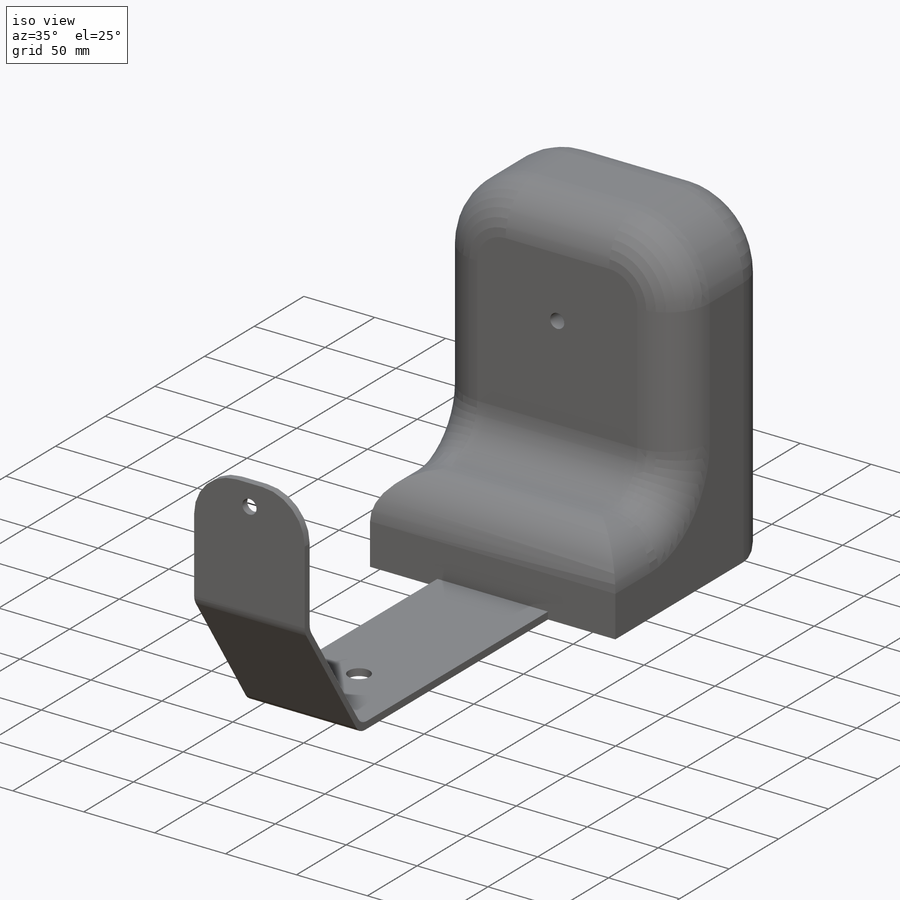
[diagram: iso view]
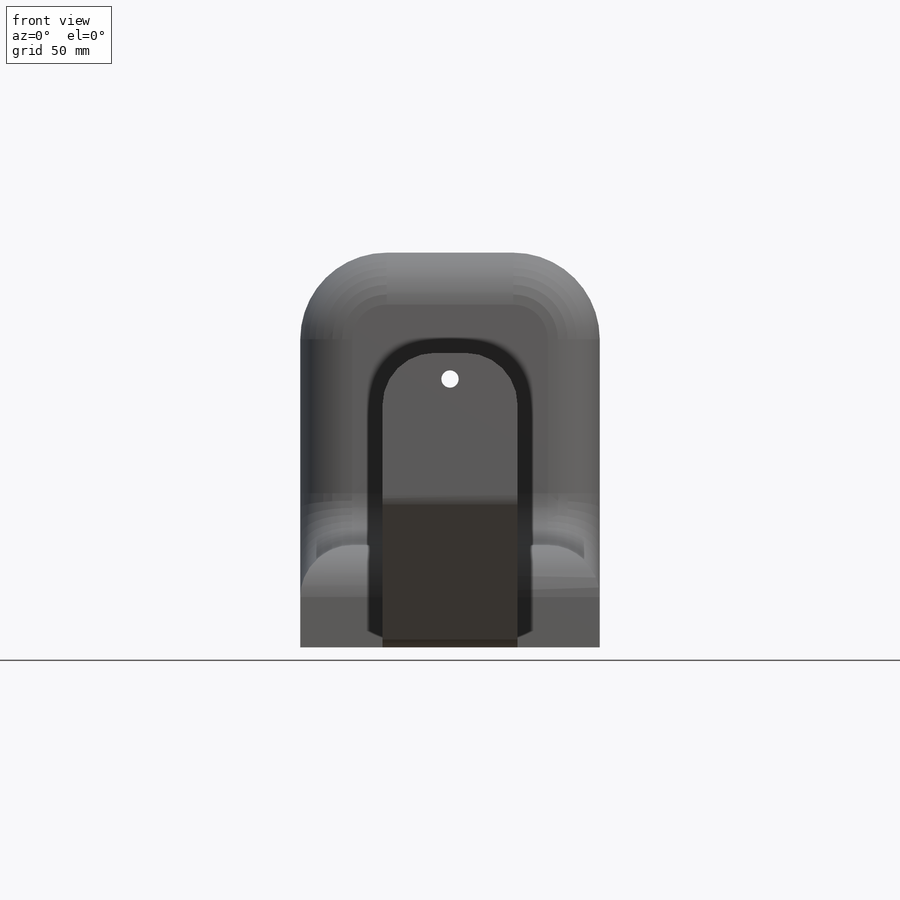
[diagram: front view]
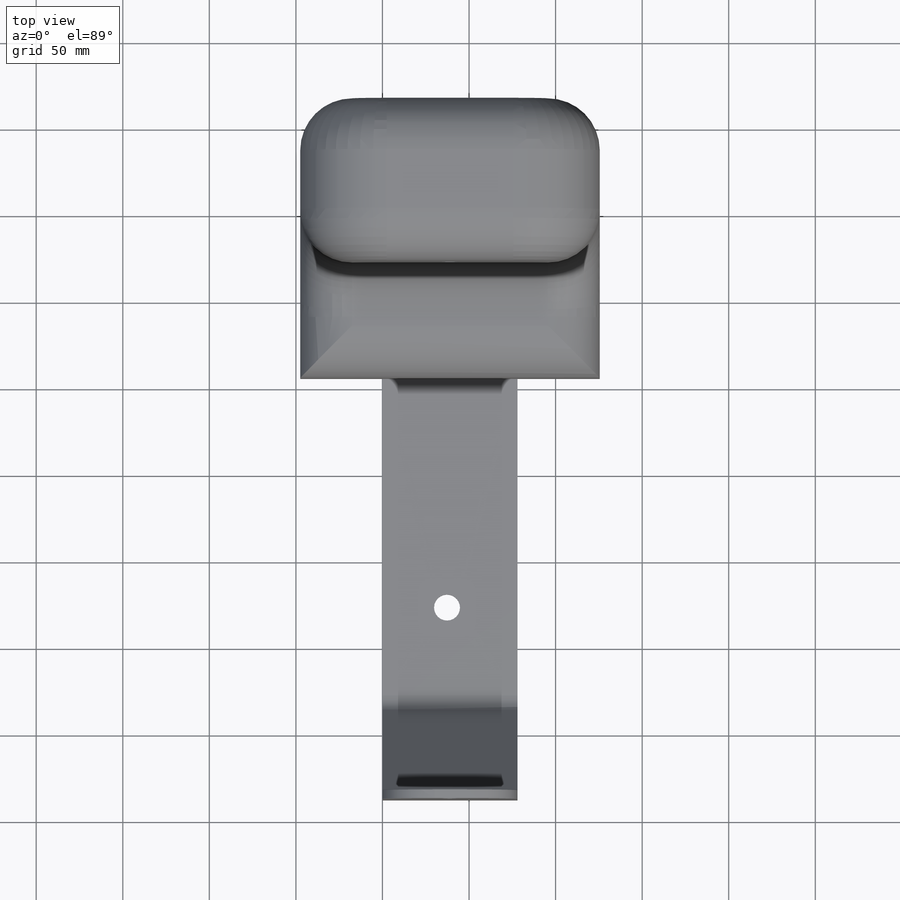
[diagram: top view]
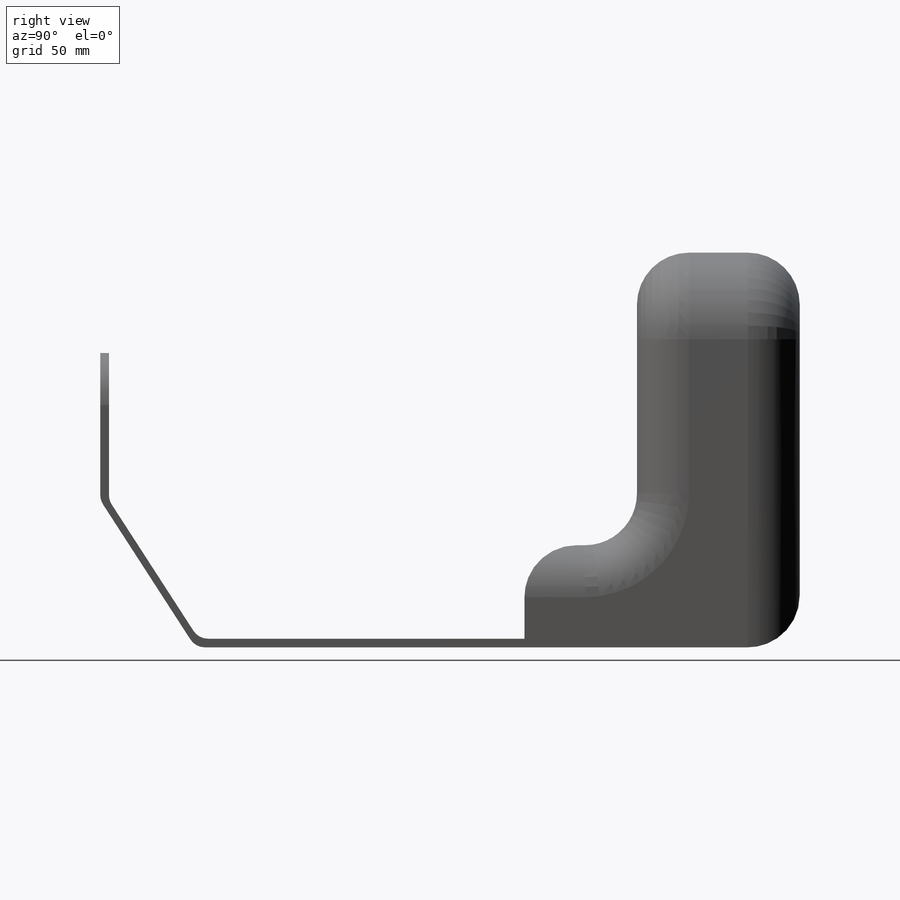
[diagram: right view]
SOLIDWORKS PART (.sldprt)
format: sldprt  version: not decoded by parser v0  size: 290,816 bytes
history: native  units: mm
features: sketch x6, fillet x5, extrude x3, cut_extrude x3, material x1 (+16 scaffold rows collapsed)
feature tree (34):
  scaffold x16  (default folders/planes/origin — collapsed)
  material  "Material <not specified>"
  sketch  "Sketch1"  dims[c1.D1=85.0mm c1.D2=95.0mm c1.D3=85.0mm c2.D2=55.0mm c2.D4=345.0mm c2.D5=200.0mm c2.D6=5.0mm c2.D7=5.0mm c2.D8=5.0mm]
  extrude  "Extrude1"  Depth=78mm
  fillet  "Fillet1"  Radius=20mm
  fillet  "Fillet2"  Radius=10mm
  sketch  "Sketch3"  dims[D1=15.0mm D2=50.675mm D3=~287.120025mm]
  cut_extrude  "Extrude3"  [1 undecoded]
  fillet  "Fillet3"  Radius=30mm
  sketch  "Sketch4"  dims[D1=245.0mm]
  cut_extrude  "Extrude4"  [1 undecoded]
  sketch  "Sketch5"  dims[D1=173.0mm D2=47.5mm D3=47.5mm D4=59.0mm D5=59.0mm]
  extrude  "Extrude5"  Depth=65mm
  sketch  "Sketch6"  dims[c1.D3=110.0mm c1.D4=110.0mm c2.D3=50.0mm c2.D1=173.0mm c2.D2=228.0mm]
  extrude  "Extrude6"  Depth=94mm
  sketch  "Sketch2"  dims[D1=10.0mm D2=15.0mm D3=39.0mm]
  cut_extrude  "Extrude2"  [1 undecoded]
  fillet  "Fillet4"  Radius=30mm
  fillet  "Fillet5"  Radius=30mm
decode coverage: 14 of 17 modeling features carry decoded parameters
note: ~ marks probable driven/reference dimensions
note: 3 parameter values undecoded
summary: no parameter record found for 3 features
note: suppression state not decoded; provenance and decode notes live in map.json
